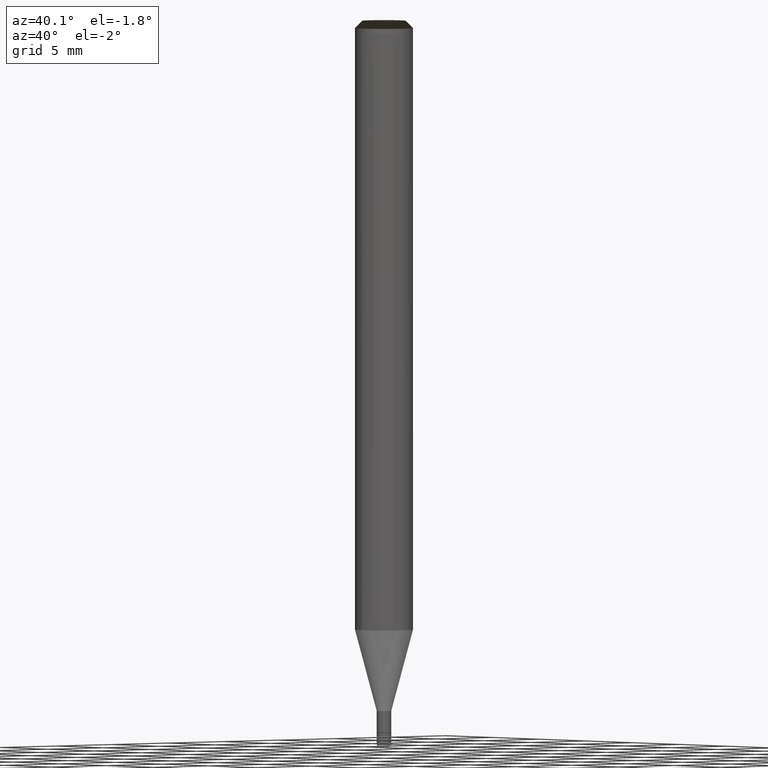
[diagram: clean part render]
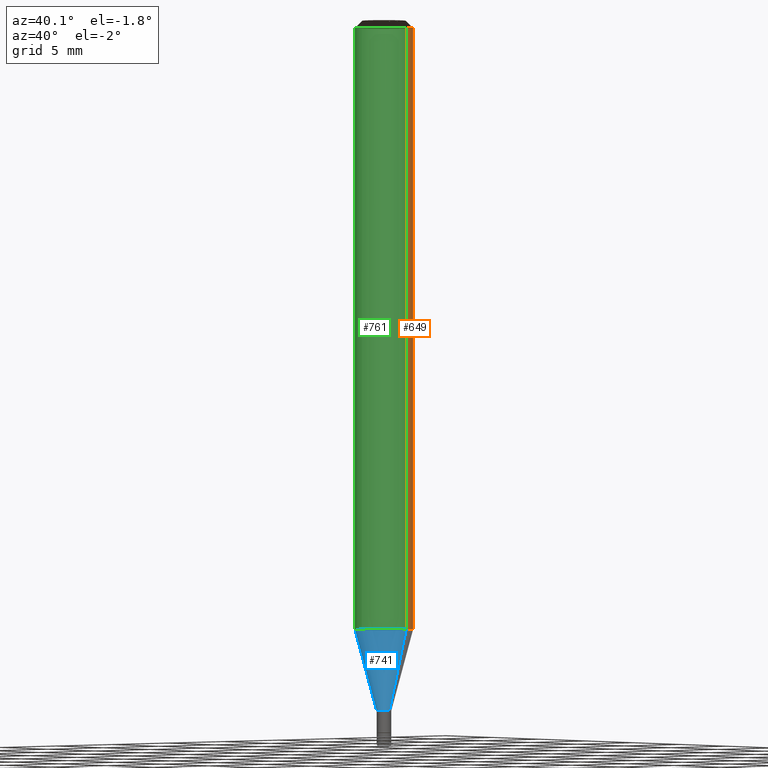
[diagram: same view with three faces highlighted in distinct colors, each labeled with its STEP entity id]
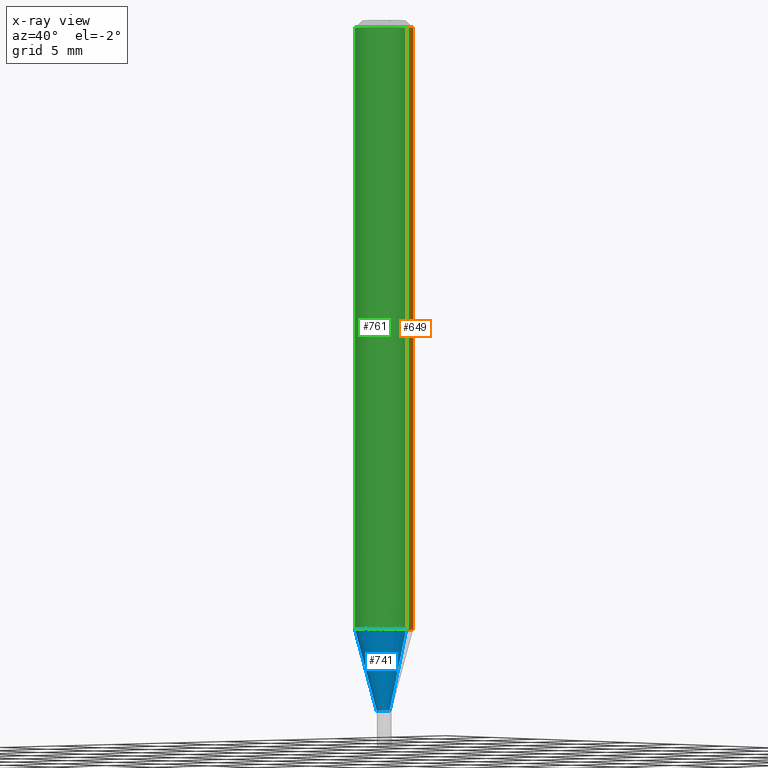
[diagram: x-ray of the same camera — body ghosted, the three highlighted faces saturated]
A machine part, auxiliary view with three faces highlighted in distinct colors.
The next image is the same camera in x-ray (body ghosted, the three faces saturated) — at least one of them is partly hidden behind the body in this view.
Their STEP definitions:

[orange] entity #649 — the highlighted face is a freeform B-spline surface patch.
#391=CARTESIAN_POINT('',(2.0,0.0,-0.0));
#392=CARTESIAN_POINT('',(2.0,2.0,-0.0));
#393=CARTESIAN_POINT('',(0.0,2.0,-0.0));
#394=CARTESIAN_POINT('',(-2.0,2.0,-0.0));
#395=CARTESIAN_POINT('',(-2.0,0.0,-0.0));
#396=CARTESIAN_POINT('',(2.0,0.0,41.401923788647));
#397=CARTESIAN_POINT('',(2.0,2.0,41.401923788647));
#398=CARTESIAN_POINT('',(0.0,2.0,41.401923788647));
#399=CARTESIAN_POINT('',(-2.0,2.0,41.401923788647));
#400=CARTESIAN_POINT('',(-2.0,0.0,41.401923788647));
#630=(
BOUNDED_SURFACE()
B_SPLINE_SURFACE(1,2,(
(#391,#392,#393,#394,#395),
(#396,#397,#398,#399,#400)
), .UNSPECIFIED.,.F.,.F.,.F.)
B_SPLINE_SURFACE_WITH_KNOTS((2,2),(3,2,3),(
0.0,1.0),(
0.0,0.5,1.0), .UNSPECIFIED.)
GEOMETRIC_REPRESENTATION_ITEM()
RATIONAL_B_SPLINE_SURFACE(((1.0,0.707106781187,1.0,0.707106781187,1.0),
(1.0,0.707106781187,1.0,0.707106781187,1.0)
))
REPRESENTATION_ITEM('')
SURFACE()
);
#631=(
BOUNDED_CURVE()
B_SPLINE_CURVE(2,(#396,#397,#398,#399,#400),.UNSPECIFIED.,.F.,.F.)
B_SPLINE_CURVE_WITH_KNOTS((3,2,3),
(0.0,0.5,1.0),.UNSPECIFIED.)
CURVE()
GEOMETRIC_REPRESENTATION_ITEM()
RATIONAL_B_SPLINE_CURVE((1.0,0.707106781187,1.0,0.707106781187,1.0))
REPRESENTATION_ITEM('')
);
#632=(
BOUNDED_CURVE()
B_SPLINE_CURVE(1,(#400,#395),.UNSPECIFIED.,.F.,.F.)
B_SPLINE_CURVE_WITH_KNOTS((2,2),
(0.0,1.0),.UNSPECIFIED.)
CURVE()
GEOMETRIC_REPRESENTATION_ITEM()
RATIONAL_B_SPLINE_CURVE((1.0,1.0))
REPRESENTATION_ITEM('')
);
#633=(
BOUNDED_CURVE()
B_SPLINE_CURVE(2,(#395,#394,#393,#392,#391),.UNSPECIFIED.,.F.,.F.)
B_SPLINE_CURVE_WITH_KNOTS((3,2,3),
(0.0,0.5,1.0),.UNSPECIFIED.)
CURVE()
GEOMETRIC_REPRESENTATION_ITEM()
RATIONAL_B_SPLINE_CURVE((1.0,0.707106781187,1.0,0.707106781187,1.0))
REPRESENTATION_ITEM('')
);
#634=(
BOUNDED_CURVE()
B_SPLINE_CURVE(1,(#391,#396),.UNSPECIFIED.,.F.,.F.)
B_SPLINE_CURVE_WITH_KNOTS((2,2),
(0.0,1.0),.UNSPECIFIED.)
CURVE()
GEOMETRIC_REPRESENTATION_ITEM()
RATIONAL_B_SPLINE_CURVE((1.0,1.0))
REPRESENTATION_ITEM('')
);
#635=VERTEX_POINT('',#391);
#636=VERTEX_POINT('',#395);
#637=VERTEX_POINT('',#396);
#638=VERTEX_POINT('',#400);
#639=EDGE_CURVE('',#637,#638,#631,.T.);
#640=EDGE_CURVE('',#638,#636,#632,.T.);
#641=EDGE_CURVE('',#636,#635,#633,.T.);
#642=EDGE_CURVE('',#635,#637,#634,.T.);
#643=ORIENTED_EDGE('',*,*,#639,.T.);
#644=ORIENTED_EDGE('',*,*,#640,.T.);
#645=ORIENTED_EDGE('',*,*,#641,.T.);
#646=ORIENTED_EDGE('',*,*,#642,.T.);
#647=EDGE_LOOP('',(#643,#644,#645,#646));
#648=FACE_OUTER_BOUND('',#647,.T.);
#649=ADVANCED_FACE('',(#648),#630,.T.);

[blue] entity #741 — the highlighted face is a freeform B-spline surface patch.
#386=CARTESIAN_POINT('',(0.5,0.0,-5.598076211353));
#390=CARTESIAN_POINT('',(-0.5,0.0,-5.598076211353));
#391=CARTESIAN_POINT('',(2.0,0.0,-0.0));
#395=CARTESIAN_POINT('',(-2.0,0.0,-0.0));
#407=CARTESIAN_POINT('',(-0.5,-0.5,-5.598076211353));
#408=CARTESIAN_POINT('',(0.0,-0.5,-5.598076211353));
#409=CARTESIAN_POINT('',(0.5,-0.5,-5.598076211353));
#410=CARTESIAN_POINT('',(-2.0,-2.0,-0.0));
#411=CARTESIAN_POINT('',(0.0,-2.0,-0.0));
#412=CARTESIAN_POINT('',(2.0,-2.0,-0.0));
#722=(
BOUNDED_SURFACE()
B_SPLINE_SURFACE(1,2,(
(#390,#407,#408,#409,#386),
(#395,#410,#411,#412,#391)
), .UNSPECIFIED.,.F.,.F.,.F.)
B_SPLINE_SURFACE_WITH_KNOTS((2,2),(3,2,3),(
0.0,1.0),(
0.0,0.5,1.0), .UNSPECIFIED.)
GEOMETRIC_REPRESENTATION_ITEM()
RATIONAL_B_SPLINE_SURFACE(((1.0,0.707106781187,1.0,0.707106781187,1.0),
(1.0,0.707106781187,1.0,0.707106781187,1.0)
))
REPRESENTATION_ITEM('')
SURFACE()
);
#723=(
BOUNDED_CURVE()
B_SPLINE_CURVE(1,(#395,#390),.UNSPECIFIED.,.F.,.F.)
B_SPLINE_CURVE_WITH_KNOTS((2,2),
(0.0,1.0),.UNSPECIFIED.)
CURVE()
GEOMETRIC_REPRESENTATION_ITEM()
RATIONAL_B_SPLINE_CURVE((1.0,1.0))
REPRESENTATION_ITEM('')
);
#724=(
BOUNDED_CURVE()
B_SPLINE_CURVE(2,(#390,#407,#408,#409,#386),.UNSPECIFIED.,.F.,.F.)
B_SPLINE_CURVE_WITH_KNOTS((3,2,3),
(0.0,0.5,1.0),.UNSPECIFIED.)
CURVE()
GEOMETRIC_REPRESENTATION_ITEM()
RATIONAL_B_SPLINE_CURVE((1.0,0.707106781187,1.0,0.707106781187,1.0))
REPRESENTATION_ITEM('')
);
#725=(
BOUNDED_CURVE()
B_SPLINE_CURVE(1,(#386,#391),.UNSPECIFIED.,.F.,.F.)
B_SPLINE_CURVE_WITH_KNOTS((2,2),
(0.0,1.0),.UNSPECIFIED.)
CURVE()
GEOMETRIC_REPRESENTATION_ITEM()
RATIONAL_B_SPLINE_CURVE((1.0,1.0))
REPRESENTATION_ITEM('')
);
#726=(
BOUNDED_CURVE()
B_SPLINE_CURVE(2,(#391,#412,#411,#410,#395),.UNSPECIFIED.,.F.,.F.)
B_SPLINE_CURVE_WITH_KNOTS((3,2,3),
(0.0,0.5,1.0),.UNSPECIFIED.)
CURVE()
GEOMETRIC_REPRESENTATION_ITEM()
RATIONAL_B_SPLINE_CURVE((1.0,0.707106781187,1.0,0.707106781187,1.0))
REPRESENTATION_ITEM('')
);
#727=VERTEX_POINT('',#386);
#728=VERTEX_POINT('',#390);
#729=VERTEX_POINT('',#391);
#730=VERTEX_POINT('',#395);
#731=EDGE_CURVE('',#730,#728,#723,.T.);
#732=EDGE_CURVE('',#728,#727,#724,.T.);
#733=EDGE_CURVE('',#727,#729,#725,.T.);
#734=EDGE_CURVE('',#729,#730,#726,.T.);
#735=ORIENTED_EDGE('',*,*,#731,.T.);
#736=ORIENTED_EDGE('',*,*,#732,.T.);
#737=ORIENTED_EDGE('',*,*,#733,.T.);
#738=ORIENTED_EDGE('',*,*,#734,.T.);
#739=EDGE_LOOP('',(#735,#736,#737,#738));
#740=FACE_OUTER_BOUND('',#739,.T.);
#741=ADVANCED_FACE('',(#740),#722,.T.);

[green] entity #761 — the highlighted face is a freeform B-spline surface patch.
#391=CARTESIAN_POINT('',(2.0,0.0,-0.0));
#395=CARTESIAN_POINT('',(-2.0,0.0,-0.0));
#396=CARTESIAN_POINT('',(2.0,0.0,41.401923788647));
#400=CARTESIAN_POINT('',(-2.0,0.0,41.401923788647));
#410=CARTESIAN_POINT('',(-2.0,-2.0,-0.0));
#411=CARTESIAN_POINT('',(0.0,-2.0,-0.0));
#412=CARTESIAN_POINT('',(2.0,-2.0,-0.0));
#413=CARTESIAN_POINT('',(-2.0,-2.0,41.401923788647));
#414=CARTESIAN_POINT('',(0.0,-2.0,41.401923788647));
#415=CARTESIAN_POINT('',(2.0,-2.0,41.401923788647));
#742=(
BOUNDED_SURFACE()
B_SPLINE_SURFACE(1,2,(
(#395,#410,#411,#412,#391),
(#400,#413,#414,#415,#396)
), .UNSPECIFIED.,.F.,.F.,.F.)
B_SPLINE_SURFACE_WITH_KNOTS((2,2),(3,2,3),(
0.0,1.0),(
0.0,0.5,1.0), .UNSPECIFIED.)
GEOMETRIC_REPRESENTATION_ITEM()
RATIONAL_B_SPLINE_SURFACE(((1.0,0.707106781187,1.0,0.707106781187,1.0),
(1.0,0.707106781187,1.0,0.707106781187,1.0)
))
REPRESENTATION_ITEM('')
SURFACE()
);
#743=(
BOUNDED_CURVE()
B_SPLINE_CURVE(1,(#400,#395),.UNSPECIFIED.,.F.,.F.)
B_SPLINE_CURVE_WITH_KNOTS((2,2),
(0.0,1.0),.UNSPECIFIED.)
CURVE()
GEOMETRIC_REPRESENTATION_ITEM()
RATIONAL_B_SPLINE_CURVE((1.0,1.0))
REPRESENTATION_ITEM('')
);
#744=(
BOUNDED_CURVE()
B_SPLINE_CURVE(2,(#395,#410,#411,#412,#391),.UNSPECIFIED.,.F.,.F.)
B_SPLINE_CURVE_WITH_KNOTS((3,2,3),
(0.0,0.5,1.0),.UNSPECIFIED.)
CURVE()
GEOMETRIC_REPRESENTATION_ITEM()
RATIONAL_B_SPLINE_CURVE((1.0,0.707106781187,1.0,0.707106781187,1.0))
REPRESENTATION_ITEM('')
);
#745=(
BOUNDED_CURVE()
B_SPLINE_CURVE(1,(#391,#396),.UNSPECIFIED.,.F.,.F.)
B_SPLINE_CURVE_WITH_KNOTS((2,2),
(0.0,1.0),.UNSPECIFIED.)
CURVE()
GEOMETRIC_REPRESENTATION_ITEM()
RATIONAL_B_SPLINE_CURVE((1.0,1.0))
REPRESENTATION_ITEM('')
);
#746=(
BOUNDED_CURVE()
B_SPLINE_CURVE(2,(#396,#415,#414,#413,#400),.UNSPECIFIED.,.F.,.F.)
B_SPLINE_CURVE_WITH_KNOTS((3,2,3),
(0.0,0.5,1.0),.UNSPECIFIED.)
CURVE()
GEOMETRIC_REPRESENTATION_ITEM()
RATIONAL_B_SPLINE_CURVE((1.0,0.707106781187,1.0,0.707106781187,1.0))
REPRESENTATION_ITEM('')
);
#747=VERTEX_POINT('',#391);
#748=VERTEX_POINT('',#395);
#749=VERTEX_POINT('',#396);
#750=VERTEX_POINT('',#400);
#751=EDGE_CURVE('',#750,#748,#743,.T.);
#752=EDGE_CURVE('',#748,#747,#744,.T.);
#753=EDGE_CURVE('',#747,#749,#745,.T.);
#754=EDGE_CURVE('',#749,#750,#746,.T.);
#755=ORIENTED_EDGE('',*,*,#751,.T.);
#756=ORIENTED_EDGE('',*,*,#752,.T.);
#757=ORIENTED_EDGE('',*,*,#753,.T.);
#758=ORIENTED_EDGE('',*,*,#754,.T.);
#759=EDGE_LOOP('',(#755,#756,#757,#758));
#760=FACE_OUTER_BOUND('',#759,.T.);
#761=ADVANCED_FACE('',(#760),#742,.T.);